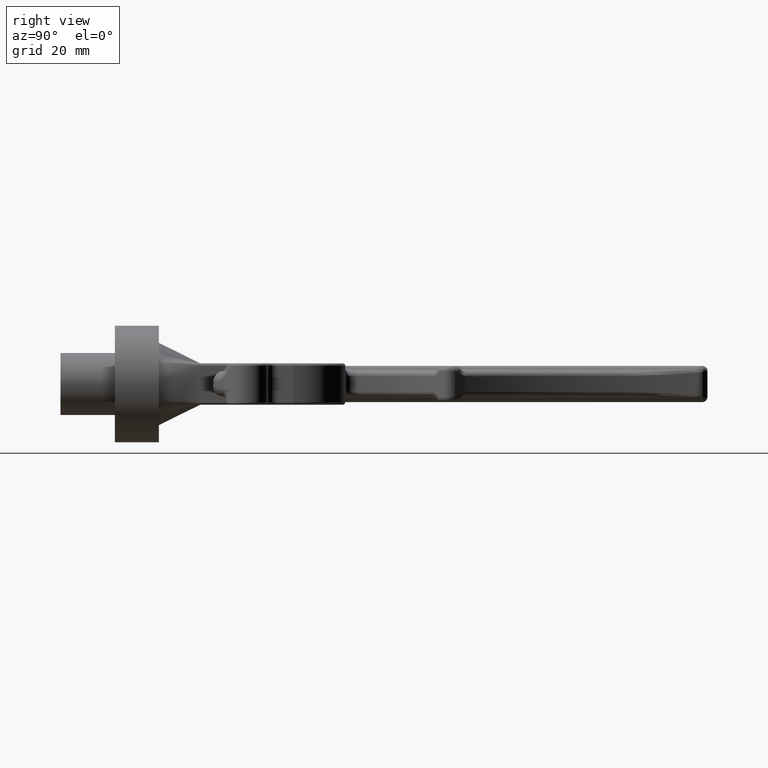
[diagram: clean part render]
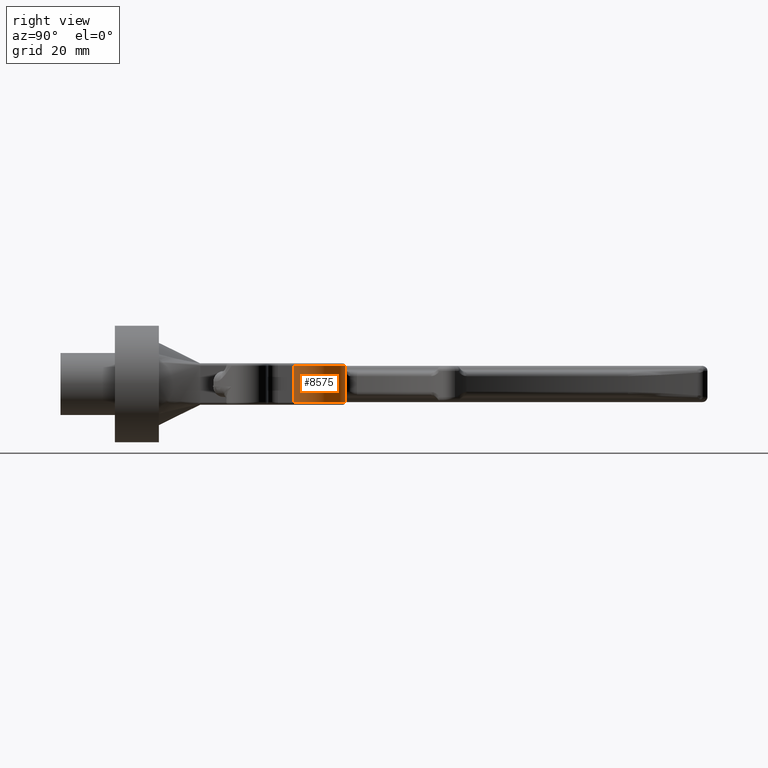
[diagram: same view with one face highlighted and labeled with its STEP entity id]
A machine part, right view. The second image highlights one B-rep face of the part: STEP entity #8575.
In plain terms, the highlighted cylindrical surface (partial cylindrical patch) has radius 10 mm, axis along (-0, -0, -1).
Its self-contained STEP definition (entity closure, byte-faithful):
#215 = EDGE_CURVE ( 'NONE', #1087, #15680, #4033, .T. ) ;
#745 = VECTOR ( 'NONE', #13186, 1000.000000000000000 ) ;
#1047 = EDGE_CURVE ( 'NONE', #3171, #8338, #10113, .T. ) ;
#1087 = VERTEX_POINT ( 'NONE', #14793 ) ;
#1096 = CARTESIAN_POINT ( 'NONE',  ( 13.46148123164811494, 28.01639653229571536, 3.500000000000000000 ) ) ;
#1695 = CARTESIAN_POINT ( 'NONE',  ( 13.46148123164811317, 18.01639653229571891, 2.500000000000000000 ) ) ;
#2325 = CARTESIAN_POINT ( 'NONE',  ( 13.46148123164811494, 28.01639653229571536, -3.500000000000000000 ) ) ;
#3171 = VERTEX_POINT ( 'NONE', #2325 ) ;
#4033 = LINE ( 'NONE', #6516, #9663 ) ;
#4719 = CARTESIAN_POINT ( 'NONE',  ( 13.46148123164811494, 28.01639653229571536, 2.500000000000000000 ) ) ;
#5579 = DIRECTION ( 'NONE',  ( -0.000000000000000000, -0.000000000000000000, 1.000000000000000000 ) ) ;
#6283 = CYLINDRICAL_SURFACE ( 'NONE', #6641, 9.999999999999998224 ) ;
#6516 = CARTESIAN_POINT ( 'NONE',  ( 23.46148123164811139, 18.01639653229571891, 2.500000000000000000 ) ) ;
#6641 = AXIS2_PLACEMENT_3D ( 'NONE', #1695, #18317, #13892 ) ;
#6781 = VERTEX_POINT ( 'NONE', #1096 ) ;
#6816 = ORIENTED_EDGE ( 'NONE', *, *, #215, .T. ) ;
#6843 = EDGE_CURVE ( 'NONE', #6781, #8338, #18606, .T. ) ;
#6851 = DIRECTION ( 'NONE',  ( -0.000000000000000000, -0.000000000000000000, -1.000000000000000000 ) ) ;
#7516 = DIRECTION ( 'NONE',  ( -0.000000000000000000, -0.000000000000000000, -1.000000000000000000 ) ) ;
#7744 = VECTOR ( 'NONE', #7516, 1000.000000000000000 ) ;
#7842 = EDGE_CURVE ( 'NONE', #15680, #3171, #12907, .T. ) ;
#8338 = VERTEX_POINT ( 'NONE', #19111 ) ;
#8575 = ADVANCED_FACE ( 'NONE', ( #9805 ), #6283, .T. ) ;
#8793 = EDGE_CURVE ( 'NONE', #6781, #1087, #14533, .T. ) ;
#9506 = ORIENTED_EDGE ( 'NONE', *, *, #1047, .T. ) ;
#9663 = VECTOR ( 'NONE', #10910, 1000.000000000000000 ) ;
#9805 = FACE_OUTER_BOUND ( 'NONE', #12291, .T. ) ;
#10113 = LINE ( 'NONE', #11735, #745 ) ;
#10910 = DIRECTION ( 'NONE',  ( -0.000000000000000000, -0.000000000000000000, -1.000000000000000000 ) ) ;
#11613 = DIRECTION ( 'NONE',  ( 1.000000000000000000, 0.000000000000000000, 0.000000000000000000 ) ) ;
#11676 = AXIS2_PLACEMENT_3D ( 'NONE', #12837, #6851, #12902 ) ;
#11735 = CARTESIAN_POINT ( 'NONE',  ( 13.46148123164811494, 28.01639653229571536, -4.000000000000000000 ) ) ;
#12291 = EDGE_LOOP ( 'NONE', ( #6816, #16014, #9506, #15525, #18193 ) ) ;
#12429 = CARTESIAN_POINT ( 'NONE',  ( 23.46148123164811139, 18.01639653229571891, -3.500000000000000000 ) ) ;
#12803 = AXIS2_PLACEMENT_3D ( 'NONE', #16074, #5579, #11613 ) ;
#12837 = CARTESIAN_POINT ( 'NONE',  ( 13.46148123164811317, 18.01639653229571891, 3.500000000000000000 ) ) ;
#12902 = DIRECTION ( 'NONE',  ( -1.000000000000000000, 0.000000000000000000, 0.000000000000000000 ) ) ;
#12907 = CIRCLE ( 'NONE', #12803, 9.999999999999996447 ) ;
#13186 = DIRECTION ( 'NONE',  ( -0.000000000000000000, -0.000000000000000000, 1.000000000000000000 ) ) ;
#13892 = DIRECTION ( 'NONE',  ( -1.000000000000000000, 0.000000000000000000, 0.000000000000000000 ) ) ;
#14533 = CIRCLE ( 'NONE', #11676, 9.999999999999998224 ) ;
#14793 = CARTESIAN_POINT ( 'NONE',  ( 23.46148123164811139, 18.01639653229571891, 3.500000000000000000 ) ) ;
#15525 = ORIENTED_EDGE ( 'NONE', *, *, #6843, .F. ) ;
#15680 = VERTEX_POINT ( 'NONE', #12429 ) ;
#16014 = ORIENTED_EDGE ( 'NONE', *, *, #7842, .T. ) ;
#16074 = CARTESIAN_POINT ( 'NONE',  ( 13.46148123164811317, 18.01639653229571891, -3.500000000000000000 ) ) ;
#18193 = ORIENTED_EDGE ( 'NONE', *, *, #8793, .T. ) ;
#18317 = DIRECTION ( 'NONE',  ( -0.000000000000000000, -0.000000000000000000, -1.000000000000000000 ) ) ;
#18606 = LINE ( 'NONE', #4719, #7744 ) ;
#19111 = CARTESIAN_POINT ( 'NONE',  ( 13.46148123164811494, 28.01639653229571536, -2.500000000000000000 ) ) ;